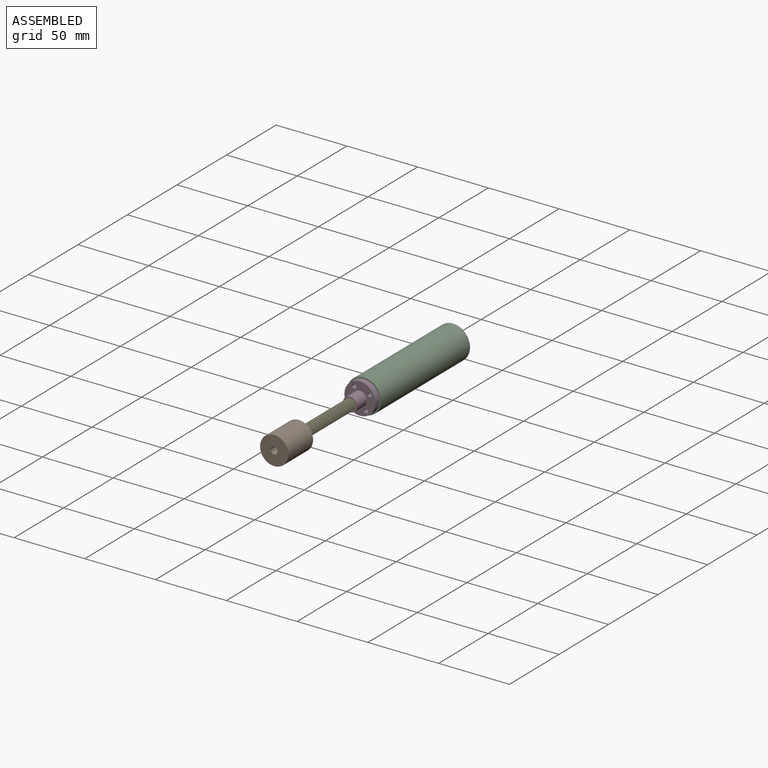
[diagram: assembled view]
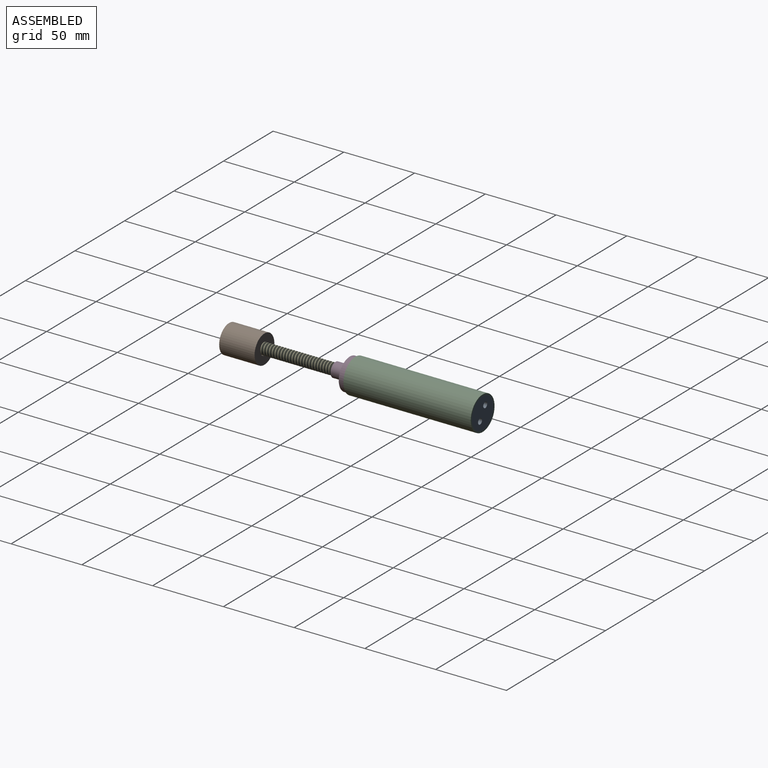
[diagram: assembled view, second angle]
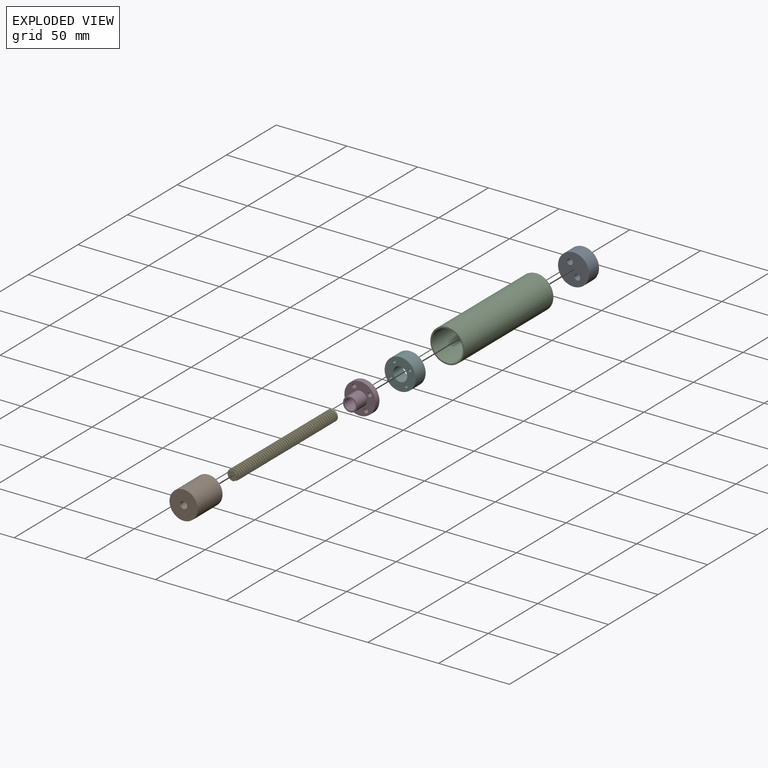
[diagram: exploded view]
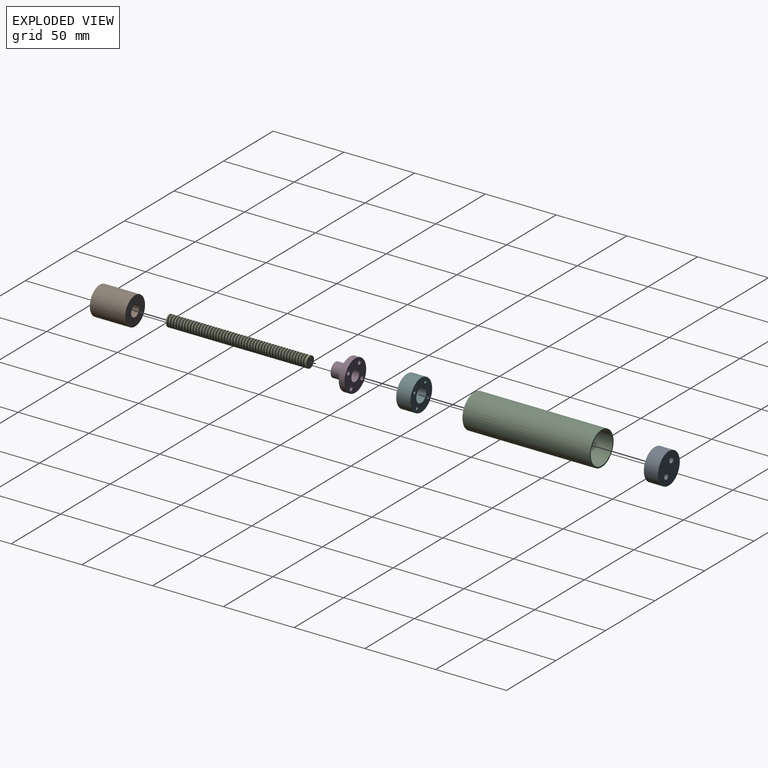
[diagram: exploded view, second angle]
ASSEMBLY  parts=6 mates=5
PART A: 5 faces, bbox 22x10x22 mm
  f0: cylinder r=11mm len=22mm, axis (0,1,0), area 691.2mm2, adj f1,f2
  f1: plane 22x22mm, normal (0,-1,0), area 355mm2, adj f0,f3,f4
  f2: plane 22x22mm, normal (0,1,0), area 355mm2, adj f0,f3,f4
  f3: cylinder r=2mm len=10mm, axis (0,-1,0), area 125.7mm2, adj f1,f2
  f4: cylinder r=2mm len=10mm, axis (0,-1,0), area 125.7mm2, adj f1,f2
PART B: 6 faces, bbox 20x25x20 mm
  f0: cylinder r=10mm len=25mm, axis (0,1,0), area 1570.8mm2, adj f1,f2
  f1: plane 20x20mm, normal (0,-1,0), area 263.9mm2, adj f0,f3
  f2: plane 20x20mm, normal (0,1,0), area 294.5mm2, adj f0,f5
  f3: cylinder r=4mm len=12.5mm, axis (0,-1,0), area 314.2mm2, adj f1,f4
  f4: plane 8x8mm, normal (0,-1,0), area 30.6mm2, adj f3,f5
  f5: cylinder r=2.5mm len=12.5mm, axis (0,1,0), area 196.3mm2, adj f2,f4
PART C: 4 faces, bbox 24x90x24 mm
  f0: cylinder r=12mm len=90mm, axis (0,1,0), area 6785.8mm2, adj f1,f2
  f1: plane 24x24mm, normal (0,-1,0), area 72.3mm2, adj f0,f3
  f2: plane 24x24mm, normal (0,1,0), area 72.3mm2, adj f0,f3
  f3: cylinder r=11mm len=90mm, axis (0,-1,0), area 6220.4mm2, adj f1,f2
PART D: 10 faces, bbox 22x14x22 mm
  f0: cylinder r=11mm len=22mm, axis (0,1,0), area 276.5mm2, adj f1,f2
  f1: plane 22x22mm, normal (0,-1,0), area 273.3mm2, adj f0,f3,f6,f7,f8,f9
  f2: plane 22x22mm, normal (0,1,0), area 301.6mm2, adj f0,f5,f6,f7,f8,f9
  f3: cylinder r=5mm len=10mm, axis (0,1,0), area 314.2mm2, adj f1,f4
  f4: plane 10x10mm, normal (0,-1,0), area 28.3mm2, adj f3,f5
  f5: cylinder r=4mm len=14mm, axis (0,-1,0), area 351.9mm2, adj f2,f4
  f6: cylinder r=1.5mm len=4mm, axis (0,1,0), area 37.7mm2, adj f1,f2
  f7: cylinder r=1.5mm len=4mm, axis (0,1,0), area 37.7mm2, adj f1,f2
  f8: cylinder r=1.5mm len=4mm, axis (0,1,0), area 37.7mm2, adj f1,f2
  f9: cylinder r=1.5mm len=4mm, axis (0,1,0), area 37.7mm2, adj f1,f2
PART E: 57 faces, bbox 9.9x101.2x8.6 mm
  f0: cylinder r=4mm len=8mm, axis (0,1,0), area 25.2mm2, adj f49,f52,f53,f54
  f1: cylinder r=4mm len=8mm, axis (0,1,0), area 15.6mm2, adj f2,f50,f51,f54,f55
  f2: cylinder r=4mm len=8mm, axis (0,1,0), area 15.6mm2, adj f1,f3,f54,f55
  f3: cylinder r=4mm len=8mm, axis (0,1,0), area 15.6mm2, adj f2,f4,f54,f55
  f4: cylinder r=4mm len=8mm, axis (0,1,0), area 15.5mm2, adj f3,f5,f54,f55
  f5: cylinder r=4mm len=8mm, axis (0,1,0), area 15.6mm2, adj f4,f6,f54,f55
  f6: cylinder r=4mm len=8mm, axis (0,1,0), area 15.6mm2, adj f5,f7,f54,f55
  f7: cylinder r=4mm len=8mm, axis (0,1,0), area 15.5mm2, adj f6,f8,f54,f55
  f8: cylinder r=4mm len=8mm, axis (0,1,0), area 15.6mm2, adj f7,f9,f54,f55
  f9: cylinder r=4mm len=8mm, axis (0,1,0), area 15.6mm2, adj f8,f10,f54,f55
  f10: cylinder r=4mm len=8mm, axis (0,1,0), area 15.6mm2, adj f9,f11,f54,f55
  f11: cylinder r=4mm len=8mm, axis (0,1,0), area 15.6mm2, adj f10,f12,f54,f55
  f12: cylinder r=4mm len=8mm, axis (0,1,0), area 15.6mm2, adj f11,f13,f54,f55
  f13: cylinder r=4mm len=8mm, axis (0,1,0), area 15.6mm2, adj f12,f14,f54,f55
  f14: cylinder r=4mm len=8mm, axis (0,1,0), area 15.6mm2, adj f13,f15,f54,f55
  f15: cylinder r=4mm len=8mm, axis (0,1,0), area 15.6mm2, adj f14,f16,f54,f55
  f16: cylinder r=4mm len=8mm, axis (0,1,0), area 15.6mm2, adj f15,f17,f54,f55
  f17: cylinder r=4mm len=8mm, axis (0,1,0), area 15.6mm2, adj f16,f18,f54,f55
  f18: cylinder r=4mm len=8mm, axis (0,1,0), area 15.6mm2, adj f17,f19,f54,f55
  f19: cylinder r=4mm len=8mm, axis (0,1,0), area 15.6mm2, adj f18,f20,f54,f55
  f20: cylinder r=4mm len=8mm, axis (0,1,0), area 15.6mm2, adj f19,f21,f54,f55
  f21: cylinder r=4mm len=8mm, axis (0,1,0), area 15.6mm2, adj f20,f22,f54,f55
  f22: cylinder r=4mm len=8mm, axis (0,1,0), area 15.6mm2, adj f21,f23,f54,f55
  f23: cylinder r=4mm len=8mm, axis (0,1,0), area 15.6mm2, adj f22,f24,f54,f55
  f24: cylinder r=4mm len=8mm, axis (0,1,0), area 15.6mm2, adj f23,f25,f54,f55
  f25: cylinder r=4mm len=8mm, axis (0,1,0), area 15.6mm2, adj f24,f26,f54,f55
  f26: cylinder r=4mm len=8mm, axis (0,1,0), area 15.6mm2, adj f25,f27,f54,f55
  f27: cylinder r=4mm len=8mm, axis (0,1,0), area 15.6mm2, adj f26,f28,f54,f55
  f28: cylinder r=4mm len=8mm, axis (0,1,0), area 15.6mm2, adj f27,f29,f54,f55
  f29: cylinder r=4mm len=8mm, axis (0,1,0), area 15.6mm2, adj f28,f30,f54,f55
  f30: cylinder r=4mm len=8mm, axis (0,1,0), area 15.6mm2, adj f29,f31,f54,f55
  f31: cylinder r=4mm len=8mm, axis (0,1,0), area 15.5mm2, adj f30,f32,f54,f55
  f32: cylinder r=4mm len=8mm, axis (0,1,0), area 15.6mm2, adj f31,f33,f54,f55
  f33: cylinder r=4mm len=8mm, axis (0,1,0), area 15.6mm2, adj f32,f34,f54,f55
  f34: cylinder r=4mm len=8mm, axis (0,1,0), area 15.6mm2, adj f33,f35,f54,f55
  f35: cylinder r=4mm len=8mm, axis (0,1,0), area 15.6mm2, adj f34,f36,f54,f55
  f36: cylinder r=4mm len=8mm, axis (0,1,0), area 15.6mm2, adj f35,f37,f54,f55
  f37: cylinder r=4mm len=8mm, axis (0,1,0), area 15.6mm2, adj f36,f38,f54,f55
  f38: cylinder r=4mm len=8mm, axis (0,1,0), area 15.6mm2, adj f37,f39,f54,f55
  f39: cylinder r=4mm len=8mm, axis (0,1,0), area 15.6mm2, adj f38,f40,f54,f55
  f40: cylinder r=4mm len=8mm, axis (0,1,0), area 15.6mm2, adj f39,f41,f54,f55
  f41: cylinder r=4mm len=8mm, axis (0,1,0), area 15.6mm2, adj f40,f42,f54,f55
  f42: cylinder r=4mm len=8mm, axis (0,1,0), area 15.6mm2, adj f41,f43,f54,f55
  f43: cylinder r=4mm len=8mm, axis (0,1,0), area 15.6mm2, adj f42,f44,f54,f55
  f44: cylinder r=4mm len=8mm, axis (0,1,0), area 15.6mm2, adj f43,f45,f54,f55
  f45: cylinder r=4mm len=8mm, axis (0,1,0), area 15.6mm2, adj f44,f46,f54,f55
  f46: cylinder r=4mm len=8mm, axis (0,1,0), area 15.6mm2, adj f45,f47,f54,f55
  f47: cylinder r=4mm len=8mm, axis (0,1,0), area 15.6mm2, adj f46,f48,f54,f55
  f48: cylinder r=4mm len=8mm, axis (0,1,0), area 15.6mm2, adj f47,f49,f54,f55
  f49: cylinder r=4mm len=8mm, axis (0,1,0), area 15.6mm2, adj f0,f48,f54,f55
  f50: cylinder r=4mm len=5.41mm, axis (0,1,0), area 2.4mm2, adj f1,f51,f55
  f51: plane 7.31x6.98mm, normal (0,-1,0), area 33mm2, adj f1,f50,f54,f55,f56
  f52: plane 8x8mm, normal (0,1,0), area 50.3mm2, adj f0
  f53: plane 1.5x1.38mm, normal (-1,0,0), area 1.7mm2, adj f0,f54,f55,f56
  f54: bspline ~100.14x9.4mm, area 1541.5mm2, adj f0,f1,f2,f3,f4,f5,f6,f7
  f55: bspline ~99.77x9.4mm, area 1574.2mm2, adj f1,f2,f3,f4,f5,f6,f7,f8
  f56: cylinder r=2.5mm len=99.87mm, axis (0,1,0), area 390.9mm2, adj f51,f53,f54,f55
PART F: 8 faces, bbox 22x10x22 mm
  f0: cylinder r=11mm len=22mm, axis (0,1,0), area 691.2mm2, adj f1,f2
  f1: plane 22x22mm, normal (0,-1,0), area 289mm2, adj f0,f3,f4,f5,f6,f7
  f2: plane 22x22mm, normal (0,1,0), area 289mm2, adj f0,f3,f4,f5,f6,f7
  f3: cylinder r=5mm len=10mm, axis (0,-1,0), area 314.2mm2, adj f1,f2
  f4: cylinder r=1mm len=10mm, axis (0,-1,0), area 62.8mm2, adj f1,f2
  f5: cylinder r=1mm len=10mm, axis (0,-1,0), area 62.8mm2, adj f1,f2
  f6: cylinder r=1mm len=10mm, axis (0,-1,0), area 62.8mm2, adj f1,f2
  f7: cylinder r=1mm len=10mm, axis (0,-1,0), area 62.8mm2, adj f1,f2
PLACE A rot(axis=(0.96,0,0.27),180deg) t=(22.76,79.12,-26.6)mm
PLACE B rot(axis=(0.98,0,-0.17),180deg) t=(22.13,-90.52,-27.26)mm
PLACE C rot(axis=(0,-1,0),31.5deg) t=(22.76,89.12,-26.6)mm
PLACE D rot(axis=(0,-1,0),31.5deg) t=(22.76,-0.88,-26.6)mm
PLACE E rot(axis=(0,-1,0),70deg) t=(22.76,21.98,-26.6)mm
PLACE F rot(axis=(0.27,0,-0.96),180deg) t=(22.76,-0.88,-26.6)mm
MATE cylindrical E.f0 <-> D.f5  axis (0,-1,0) through (22.76,-78.02,-26.6)mm
MATE fastened F.f6 <-> D.f8  axis (0,-1,0) through (18.58,-0.88,-19.78)mm
MATE fastened B.f3 <-> E.f51  axis (0,1,0) through (22.13,-78.02,-27.26)mm
MATE fastened A.f0 <-> C.f3  axis (0,1,0) through (22.76,89.12,-26.6)mm
MATE fastened C.f3 <-> D.f0  axis (0,-1,0) through (22.76,-0.88,-26.6)mm
